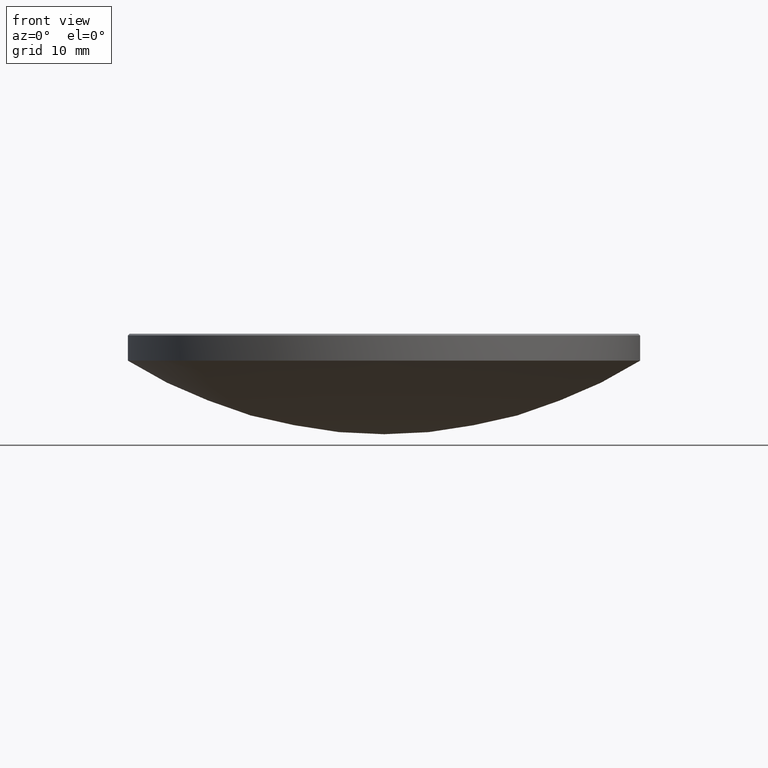
[diagram: clean part render]
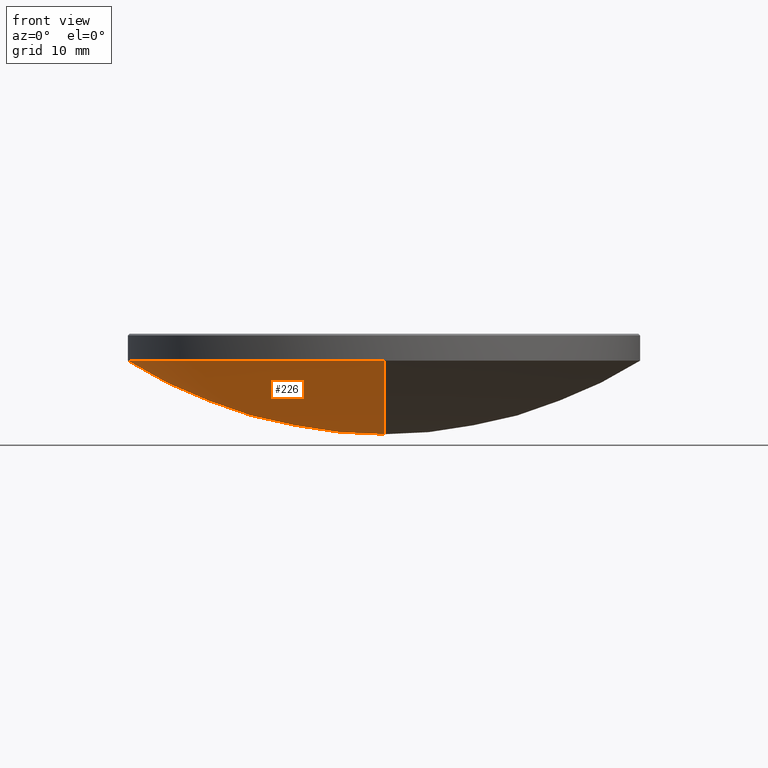
[diagram: same view with one face highlighted and labeled with its STEP entity id]
A machine part, front view. The second image highlights one B-rep face of the part: STEP entity #226.
In plain terms, the highlighted spherical surface has radius 47.87 mm.
Its self-contained STEP definition (entity closure, byte-faithful):
#6 = DIRECTION ( 'NONE',  ( -1.224646799147353207E-16, -1.000000000000000000, 0.000000000000000000 ) ) ;
#16 = EDGE_CURVE ( 'NONE', #70, #272, #153, .T. ) ;
#20 = CIRCLE ( 'NONE', #178, 47.86999999999999744 ) ;
#27 = EDGE_LOOP ( 'NONE', ( #32, #268, #200, #92 ) ) ;
#28 = DIRECTION ( 'NONE',  ( -1.000000000000000000, 1.224646799147353207E-16, 0.000000000000000000 ) ) ;
#30 = CARTESIAN_POINT ( 'NONE',  ( 0.000000000000000000, 0.000000000000000000, 53.57557023628872628 ) ) ;
#31 = DIRECTION ( 'NONE',  ( -0.000000000000000000, -0.000000000000000000, 1.000000000000000000 ) ) ;
#32 = ORIENTED_EDGE ( 'NONE', *, *, #237, .F. ) ;
#34 = DIRECTION ( 'NONE',  ( 1.000000000000000000, 0.000000000000000000, 0.000000000000000000 ) ) ;
#40 = DIRECTION ( 'NONE',  ( 1.000000000000000000, 0.000000000000000000, 0.000000000000000000 ) ) ;
#56 = CARTESIAN_POINT ( 'NONE',  ( 0.000000000000000000, 0.000000000000000000, 13.00000000000000000 ) ) ;
#60 = CARTESIAN_POINT ( 'NONE',  ( 0.000000000000000000, 0.000000000000000000, 13.00000000000000000 ) ) ;
#70 = VERTEX_POINT ( 'NONE', #215 ) ;
#74 = DIRECTION ( 'NONE',  ( 0.000000000000000000, 1.000000000000000000, 0.000000000000000000 ) ) ;
#84 = AXIS2_PLACEMENT_3D ( 'NONE', #56, #31, #34 ) ;
#92 = ORIENTED_EDGE ( 'NONE', *, *, #16, .F. ) ;
#100 = AXIS2_PLACEMENT_3D ( 'NONE', #60, #232, #40 ) ;
#104 = VERTEX_POINT ( 'NONE', #250 ) ;
#105 = CARTESIAN_POINT ( 'NONE',  ( 0.000000000000000000, 0.000000000000000000, 53.57557023628872628 ) ) ;
#113 = EDGE_CURVE ( 'NONE', #272, #104, #216, .T. ) ;
#119 = DIRECTION ( 'NONE',  ( 0.000000000000000000, 0.000000000000000000, -1.000000000000000000 ) ) ;
#121 = VERTEX_POINT ( 'NONE', #126 ) ;
#125 = CARTESIAN_POINT ( 'NONE',  ( -25.39999999999999503, 0.000000000000000000, 13.00000000000000000 ) ) ;
#126 = CARTESIAN_POINT ( 'NONE',  ( 0.000000000000000000, 2.931192113759189857E-15, 5.705570236288731500 ) ) ;
#131 = AXIS2_PLACEMENT_3D ( 'NONE', #105, #190, #74 ) ;
#153 = CIRCLE ( 'NONE', #84, 25.39999999999999503 ) ;
#167 = CIRCLE ( 'NONE', #263, 47.86999999999999744 ) ;
#178 = AXIS2_PLACEMENT_3D ( 'NONE', #30, #275, #119 ) ;
#190 = DIRECTION ( 'NONE',  ( -1.000000000000000000, 0.000000000000000000, 0.000000000000000000 ) ) ;
#200 = ORIENTED_EDGE ( 'NONE', *, *, #113, .F. ) ;
#215 = CARTESIAN_POINT ( 'NONE',  ( 0.000000000000000000, 25.39999999999999858, 12.99999999999999822 ) ) ;
#216 = CIRCLE ( 'NONE', #100, 25.39999999999999503 ) ;
#220 = SPHERICAL_SURFACE ( 'NONE', #131, 47.86999999999999744 ) ;
#221 = EDGE_CURVE ( 'NONE', #121, #104, #167, .T. ) ;
#223 = FACE_OUTER_BOUND ( 'NONE', #27, .T. ) ;
#226 = ADVANCED_FACE ( 'NONE', ( #223 ), #220, .T. ) ;
#232 = DIRECTION ( 'NONE',  ( -0.000000000000000000, -0.000000000000000000, 1.000000000000000000 ) ) ;
#237 = EDGE_CURVE ( 'NONE', #121, #70, #20, .T. ) ;
#244 = CARTESIAN_POINT ( 'NONE',  ( 0.000000000000000000, 0.000000000000000000, 53.57557023628872628 ) ) ;
#250 = CARTESIAN_POINT ( 'NONE',  ( -3.110602869834276865E-15, -25.39999999999999858, 12.99999999999999822 ) ) ;
#263 = AXIS2_PLACEMENT_3D ( 'NONE', #244, #28, #6 ) ;
#268 = ORIENTED_EDGE ( 'NONE', *, *, #221, .T. ) ;
#272 = VERTEX_POINT ( 'NONE', #125 ) ;
#275 = DIRECTION ( 'NONE',  ( 1.000000000000000000, -0.000000000000000000, 0.000000000000000000 ) ) ;